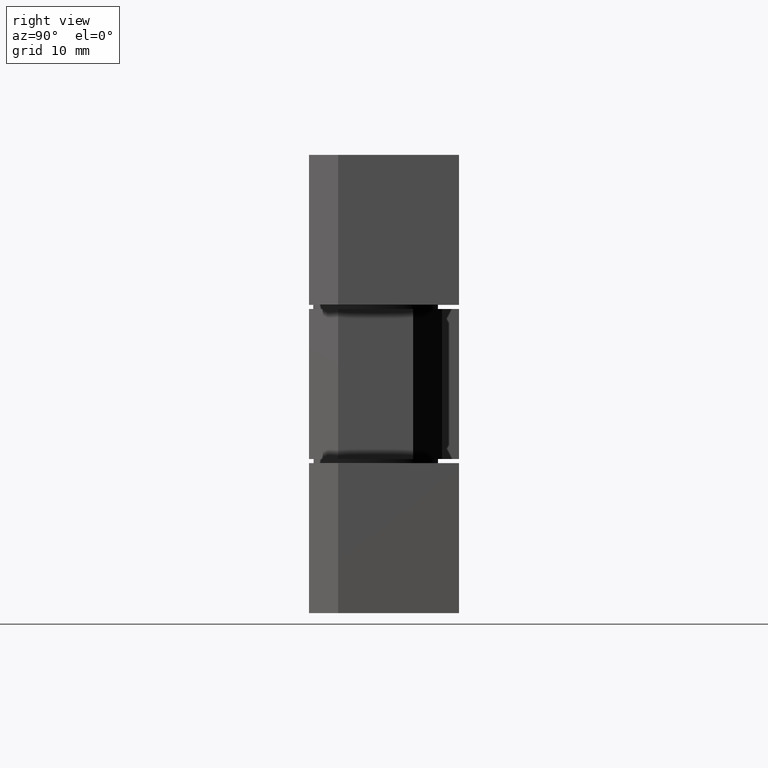
[diagram: clean part render]
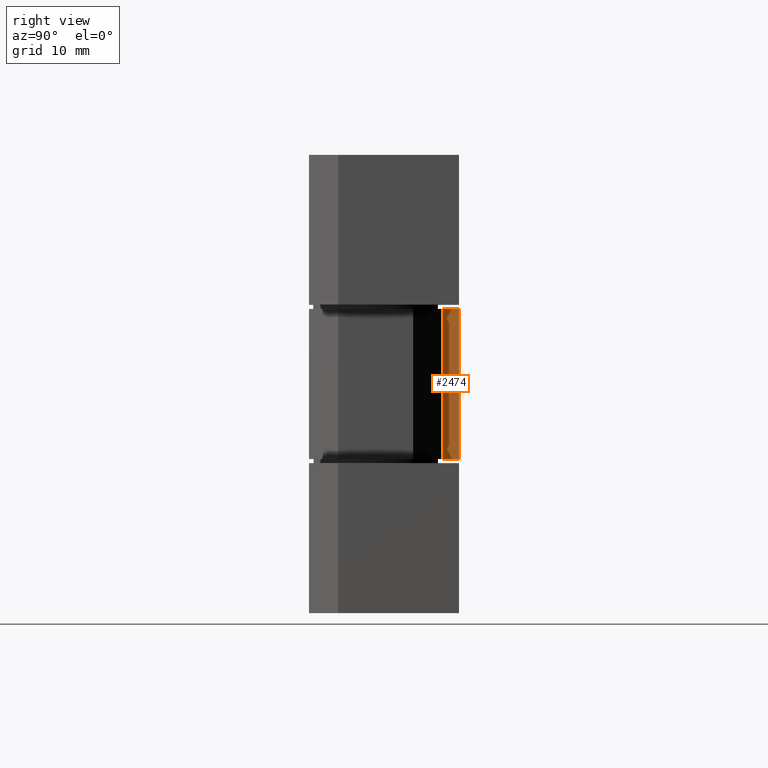
[diagram: same view with one face highlighted and labeled with its STEP entity id]
A machine part, right view. The second image highlights one B-rep face of the part: STEP entity #2474.
In plain terms, the highlighted face is a freeform B-spline surface patch.
Its self-contained STEP definition (entity closure, byte-faithful):
#2166=CARTESIAN_POINT('',(-16.000000759959200,10.0,18.500000878703300));
#2167=VERTEX_POINT('',#2166);
#2168=CARTESIAN_POINT('',(-16.000000759959200,7.999999905005130,18.500000878703300));
#2169=VERTEX_POINT('',#2168);
#2170=CARTESIAN_POINT('',(-16.000000759959200,10.0,18.500000878703300));
#2171=CARTESIAN_POINT('',(-16.000000759959200,7.999999905005130,18.500000878703300));
#2172=QUASI_UNIFORM_CURVE('',1,(#2170,#2171),.UNSPECIFIED.,.F.,.U.);
#2173=EDGE_CURVE('',#2167,#2169,#2172,.T.);
#2243=CARTESIAN_POINT('',(-16.000000759959200,10.0,36.500001733657001));
#2244=VERTEX_POINT('',#2243);
#2245=CARTESIAN_POINT('',(-16.000000759959200,7.999999905005130,36.500001733657001));
#2246=VERTEX_POINT('',#2245);
#2247=CARTESIAN_POINT('',(-16.000000759959200,10.0,36.500001733657001));
#2248=CARTESIAN_POINT('',(-16.000000759959200,7.999999905005130,36.500001733657001));
#2249=QUASI_UNIFORM_CURVE('',1,(#2247,#2248),.UNSPECIFIED.,.F.,.U.);
#2250=EDGE_CURVE('',#2244,#2246,#2249,.T.);
#2327=CARTESIAN_POINT('',(-16.000000759959200,10.0,36.500001733657001));
#2328=CARTESIAN_POINT('',(-16.000000759959200,10.0,18.500000878703300));
#2329=QUASI_UNIFORM_CURVE('',1,(#2327,#2328),.UNSPECIFIED.,.F.,.U.);
#2330=EDGE_CURVE('',#2244,#2167,#2329,.T.);
#2453=CARTESIAN_POINT('',(-16.000000759959200,7.999999905005130,36.500001733657001));
#2454=CARTESIAN_POINT('',(-16.000000759959200,7.999999905005130,18.500000878703300));
#2455=QUASI_UNIFORM_CURVE('',1,(#2453,#2454),.UNSPECIFIED.,.F.,.U.);
#2456=EDGE_CURVE('',#2246,#2169,#2455,.T.);
#2463=CARTESIAN_POINT('',(-16.000000759959200,7.900099998009374,37.399100051763149));
#2464=CARTESIAN_POINT('',(-16.000000759959200,7.900099998009374,17.600900468474020));
#2465=CARTESIAN_POINT('',(-16.000000759959200,10.099900050046910,37.399100051763149));
#2466=CARTESIAN_POINT('',(-16.000000759959200,10.099900050046910,17.600900468474020));
#2467=B_SPLINE_SURFACE_WITH_KNOTS('',1,1,((#2463,#2465),(#2464,#2466)),.UNSPECIFIED.,.F.,.F.,.U.,(2,2),(2,2),(0.0,19.798199583289129),(0.0,2.199800052037537),.UNSPECIFIED.);
#2468=ORIENTED_EDGE('',*,*,#2173,.F.);
#2469=ORIENTED_EDGE('',*,*,#2330,.F.);
#2470=ORIENTED_EDGE('',*,*,#2250,.T.);
#2471=ORIENTED_EDGE('',*,*,#2456,.T.);
#2472=EDGE_LOOP('',(#2468,#2469,#2470,#2471));
#2473=FACE_OUTER_BOUND('',#2472,.T.);
#2474=ADVANCED_FACE('',(#2473),#2467,.T.);